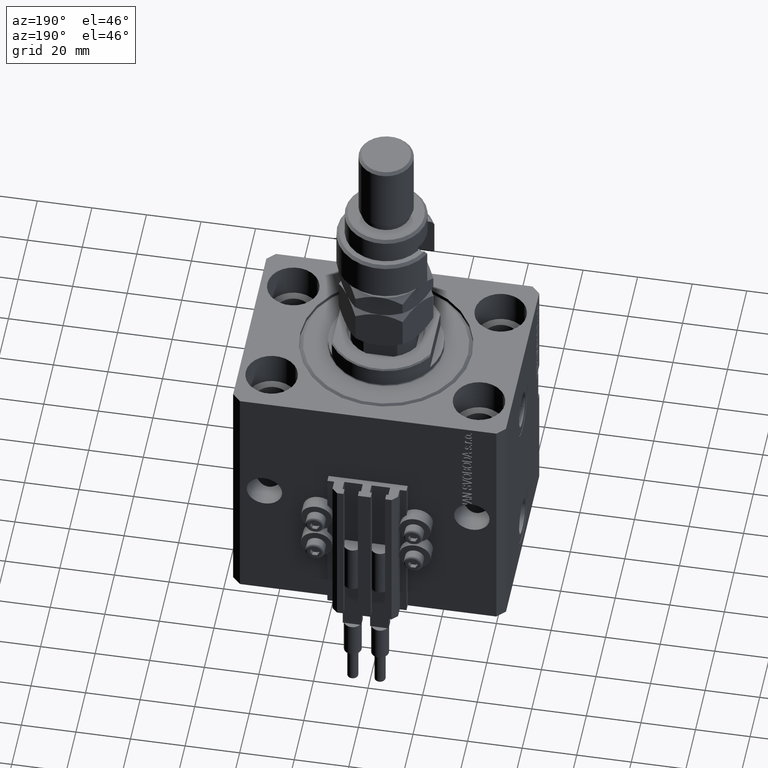
[diagram: clean part render]
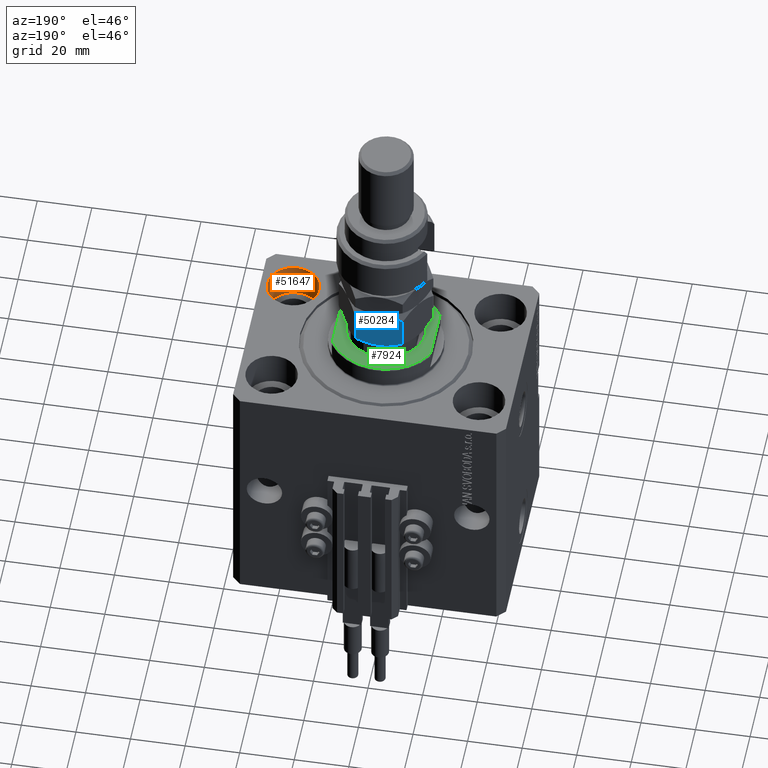
[diagram: same view with three faces highlighted in distinct colors, each labeled with its STEP entity id]
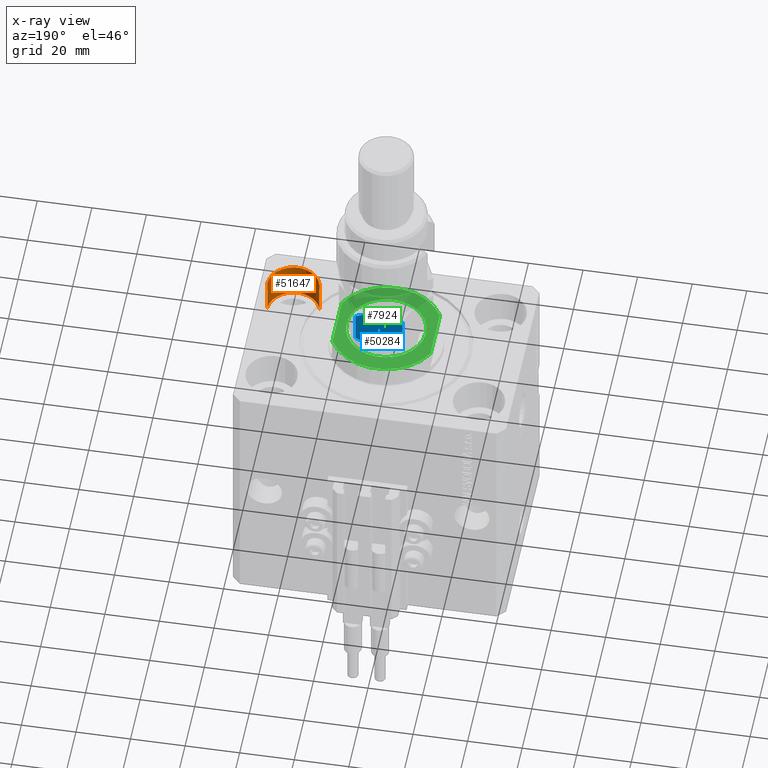
[diagram: x-ray of the same camera — body ghosted, the three highlighted faces saturated]
A machine part, auxiliary view with three faces highlighted in distinct colors.
The next image is the same camera in x-ray (body ghosted, the three faces saturated) — at least one of them is partly hidden behind the body in this view.
Their STEP definitions:

[orange] entity #51647 — the highlighted cylindrical surface (edge-blend (fillet) strip) has radius 9.5 mm, axis along (0, 0, 1).
#3192 = VECTOR ( 'NONE', #11476, 1000.000000000000000 ) ;
#4211 = ORIENTED_EDGE ( 'NONE', *, *, #10575, .F. ) ;
#7551 = CARTESIAN_POINT ( 'NONE',  ( 47.50000000000000711, -22.50000000000000000, -13.00000000000000000 ) ) ;
#8073 = CARTESIAN_POINT ( 'NONE',  ( 47.50000000000000711, -22.50000000000000000, -13.00000000000000000 ) ) ;
#8594 = CIRCLE ( 'NONE', #46232, 9.500000000000001776 ) ;
#10022 = VECTOR ( 'NONE', #11278, 1000.000000000000000 ) ;
#10575 = EDGE_CURVE ( 'NONE', #42888, #39161, #51062, .T. ) ;
#11278 = DIRECTION ( 'NONE',  ( -0.000000000000000000, -0.000000000000000000, 1.000000000000000000 ) ) ;
#11476 = DIRECTION ( 'NONE',  ( -0.000000000000000000, -0.000000000000000000, 1.000000000000000000 ) ) ;
#12895 = VERTEX_POINT ( 'NONE', #47609 ) ;
#13987 = AXIS2_PLACEMENT_3D ( 'NONE', #26715, #21805, #22775 ) ;
#14050 = EDGE_CURVE ( 'NONE', #31219, #39161, #45870, .T. ) ;
#15204 = CARTESIAN_POINT ( 'NONE',  ( 28.50000000000000355, -22.50000000000000000, -13.00000000000000000 ) ) ;
#15367 = DIRECTION ( 'NONE',  ( 1.000000000000000000, 0.000000000000000000, 0.000000000000000000 ) ) ;
#16880 = EDGE_CURVE ( 'NONE', #12895, #31219, #39037, .T. ) ;
#19964 = CARTESIAN_POINT ( 'NONE',  ( 28.50000000000000355, -22.50000000000000000, 0.000000000000000000 ) ) ;
#21805 = DIRECTION ( 'NONE',  ( -0.000000000000000000, -0.000000000000000000, 1.000000000000000000 ) ) ;
#22429 = AXIS2_PLACEMENT_3D ( 'NONE', #44178, #28155, #15367 ) ;
#22775 = DIRECTION ( 'NONE',  ( 1.000000000000000000, 0.000000000000000000, 0.000000000000000000 ) ) ;
#23300 = CYLINDRICAL_SURFACE ( 'NONE', #13987, 9.500000000000001776 ) ;
#25956 = DIRECTION ( 'NONE',  ( 1.000000000000000000, 0.000000000000000000, 0.000000000000000000 ) ) ;
#26711 = EDGE_CURVE ( 'NONE', #12895, #42888, #8594, .T. ) ;
#26715 = CARTESIAN_POINT ( 'NONE',  ( 38.00000000000000711, -22.50000000000000000, -13.00000000000000000 ) ) ;
#28155 = DIRECTION ( 'NONE',  ( 0.000000000000000000, 0.000000000000000000, 1.000000000000000000 ) ) ;
#30404 = CARTESIAN_POINT ( 'NONE',  ( 38.00000000000000711, -22.50000000000000000, -13.00000000000000000 ) ) ;
#31219 = VERTEX_POINT ( 'NONE', #19964 ) ;
#33592 = FACE_OUTER_BOUND ( 'NONE', #42361, .T. ) ;
#38099 = ORIENTED_EDGE ( 'NONE', *, *, #16880, .T. ) ;
#39037 = LINE ( 'NONE', #15204, #10022 ) ;
#39161 = VERTEX_POINT ( 'NONE', #50608 ) ;
#40117 = ORIENTED_EDGE ( 'NONE', *, *, #14050, .T. ) ;
#42361 = EDGE_LOOP ( 'NONE', ( #48489, #38099, #40117, #4211 ) ) ;
#42888 = VERTEX_POINT ( 'NONE', #8073 ) ;
#44178 = CARTESIAN_POINT ( 'NONE',  ( 38.00000000000000711, -22.50000000000000000, 0.000000000000000000 ) ) ;
#45870 = CIRCLE ( 'NONE', #22429, 9.500000000000001776 ) ;
#46232 = AXIS2_PLACEMENT_3D ( 'NONE', #30404, #46430, #25956 ) ;
#46430 = DIRECTION ( 'NONE',  ( 0.000000000000000000, 0.000000000000000000, 1.000000000000000000 ) ) ;
#47609 = CARTESIAN_POINT ( 'NONE',  ( 28.50000000000000355, -22.50000000000000000, -13.00000000000000000 ) ) ;
#48489 = ORIENTED_EDGE ( 'NONE', *, *, #26711, .F. ) ;
#50608 = CARTESIAN_POINT ( 'NONE',  ( 47.50000000000000711, -22.50000000000000000, 0.000000000000000000 ) ) ;
#51062 = LINE ( 'NONE', #7551, #3192 ) ;
#51647 = ADVANCED_FACE ( 'NONE', ( #33592 ), #23300, .F. ) ;

[blue] entity #50284 — the highlighted planar face has unit normal (0, -1, 0).
#354 = ORIENTED_EDGE ( 'NONE', *, *, #31168, .F. ) ;
#492 = CARTESIAN_POINT ( 'NONE',  ( 0.000000000000000000, 17.32050807568877104, 16.00000000000000000 ) ) ;
#917 = VERTEX_POINT ( 'NONE', #15446 ) ;
#963 = EDGE_CURVE ( 'NONE', #33290, #25014, #11776, .T. ) ;
#1547 = VERTEX_POINT ( 'NONE', #32020 ) ;
#2182 = CARTESIAN_POINT ( 'NONE',  ( -2.378834511187503331, 15.94708733029709435, 14.93551393225599710 ) ) ;
#3108 = ORIENTED_EDGE ( 'NONE', *, *, #44865, .F. ) ;
#3927 = CARTESIAN_POINT ( 'NONE',  ( 3.803331551779305683E-16, 17.32050807568877104, 13.67949192431124317 ) ) ;
#3953 = EDGE_CURVE ( 'NONE', #917, #33428, #47261, .T. ) ;
#4980 = CARTESIAN_POINT ( 'NONE',  ( -7.499999999999991118, 12.99038105676658184, 16.00000000000000000 ) ) ;
#5223 = CARTESIAN_POINT ( 'NONE',  ( -15.00000000000000000, 8.660254037844392627, 13.67949192431123429 ) ) ;
#5769 = CARTESIAN_POINT ( 'NONE',  ( -4.913081180497406386, 14.48393933357811214, 0.2303299219392169472 ) ) ;
#6023 = CARTESIAN_POINT ( 'NONE',  ( 7.621669386706803087E-17, 17.32050807568877104, 2.320508075688761718 ) ) ;
#6301 = ORIENTED_EDGE ( 'NONE', *, *, #19245, .T. ) ;
#7325 = ORIENTED_EDGE ( 'NONE', *, *, #46418, .F. ) ;
#7612 = CARTESIAN_POINT ( 'NONE',  ( -4.881674457977373649, 14.50207201327941675, 15.71619733805371055 ) ) ;
#9702 = CARTESIAN_POINT ( 'NONE',  ( -6.195449321423083688, 13.74356374221447297, 3.003578830963748213E-15 ) ) ;
#9953 = CARTESIAN_POINT ( 'NONE',  ( -2.383929548160348855, 15.94414570932928576, 1.060479031370877401 ) ) ;
#10301 = CARTESIAN_POINT ( 'NONE',  ( -7.499999999999991118, 12.99038105676658184, 16.00000000000000000 ) ) ;
#11679 = CARTESIAN_POINT ( 'NONE',  ( -7.499999999999992895, 12.99038105676658361, 0.000000000000000000 ) ) ;
#11776 = LINE ( 'NONE', #27477, #14522 ) ;
#11795 = CARTESIAN_POINT ( 'NONE',  ( -1.176108425306640504, 16.64148155974180199, 14.35851844025821578 ) ) ;
#12288 = DIRECTION ( 'NONE',  ( -0.000000000000000000, -0.000000000000000000, -1.000000000000000000 ) ) ;
#12302 = LINE ( 'NONE', #492, #33485 ) ;
#12308 = DIRECTION ( 'NONE',  ( 0.4999999999999995559, -0.8660254037844389297, 0.000000000000000000 ) ) ;
#12821 = PLANE ( 'NONE',  #46579 ) ;
#13342 = CARTESIAN_POINT ( 'NONE',  ( -7.499999999999991118, 12.99038105676658184, 16.00000000000000000 ) ) ;
#14522 = VECTOR ( 'NONE', #12288, 1000.000000000000000 ) ;
#15446 = CARTESIAN_POINT ( 'NONE',  ( 3.803331551779305683E-16, 17.32050807568877104, 13.67949192431124317 ) ) ;
#16226 = CARTESIAN_POINT ( 'NONE',  ( 0.000000000000000000, 17.32050807568877104, 16.00000000000000000 ) ) ;
#19245 = EDGE_CURVE ( 'NONE', #917, #1547, #12302, .T. ) ;
#20313 = ORIENTED_EDGE ( 'NONE', *, *, #963, .F. ) ;
#23368 = CARTESIAN_POINT ( 'NONE',  ( -8.823580389329299223, 12.22621156269320863, 0.05953537397470442388 ) ) ;
#23559 = CARTESIAN_POINT ( 'NONE',  ( -6.176419610670691895, 13.75455055083996747, 15.94046462602529957 ) ) ;
#23679 = B_SPLINE_CURVE_WITH_KNOTS ( 'NONE', 3,
 ( #13342, #36893, #48224, #36643, #29293, #5223 ),
 .UNSPECIFIED., .F., .F.,
 ( 4, 2, 4 ),
 ( 0.008977392552884438590, 0.01343452311421656012, 0.01789165367554868338 ),
 .UNSPECIFIED. ) ;
#24069 = DIRECTION ( 'NONE',  ( 0.8660254037844389297, 0.4999999999999995559, 0.000000000000000000 ) ) ;
#25014 = VERTEX_POINT ( 'NONE', #28714 ) ;
#27305 = CARTESIAN_POINT ( 'NONE',  ( -8.156876182308247181, 12.61113341608666083, 3.106916850528774038E-15 ) ) ;
#27477 = CARTESIAN_POINT ( 'NONE',  ( -15.00000000000000000, 8.660254037844392627, 16.00000000000000000 ) ) ;
#28255 = DIRECTION ( 'NONE',  ( -0.000000000000000000, -0.000000000000000000, -1.000000000000000000 ) ) ;
#28714 = CARTESIAN_POINT ( 'NONE',  ( -15.00000000000000000, 8.660254037844394404, 2.320508075688769711 ) ) ;
#29293 = CARTESIAN_POINT ( 'NONE',  ( -13.82525345580783771, 9.338494271363320109, 14.35773215783021683 ) ) ;
#29833 = CARTESIAN_POINT ( 'NONE',  ( -7.499999999999992895, 12.99038105676658361, 0.000000000000000000 ) ) ;
#31168 = EDGE_CURVE ( 'NONE', #25014, #43315, #38230, .T. ) ;
#31224 = CARTESIAN_POINT ( 'NONE',  ( -15.00000000000000000, 8.660254037844394404, 2.320508075688769711 ) ) ;
#32020 = CARTESIAN_POINT ( 'NONE',  ( 7.621669386706803087E-17, 17.32050807568877104, 2.320508075688761718 ) ) ;
#33290 = VERTEX_POINT ( 'NONE', #34087 ) ;
#33428 = VERTEX_POINT ( 'NONE', #4980 ) ;
#33485 = VECTOR ( 'NONE', #28255, 1000.000000000000000 ) ;
#34087 = CARTESIAN_POINT ( 'NONE',  ( -15.00000000000000000, 8.660254037844392627, 13.67949192431123429 ) ) ;
#35093 = CARTESIAN_POINT ( 'NONE',  ( -4.247772349543481596, 14.86805556622359070, 15.55242859148697043 ) ) ;
#35657 = B_SPLINE_CURVE_WITH_KNOTS ( 'NONE', 3,
 ( #29833, #9702, #5769, #9953, #41913, #6023 ),
 .UNSPECIFIED., .F., .F.,
 ( 4, 2, 4 ),
 ( 0.008977392552884454202, 0.01343452311421656706, 0.01789165367554867991 ),
 .UNSPECIFIED. ) ;
#35675 = CARTESIAN_POINT ( 'NONE',  ( -10.11832554202262280, 11.47869010025375403, 0.2838026619462963862 ) ) ;
#36643 = CARTESIAN_POINT ( 'NONE',  ( -12.61607045183964715, 10.03661640420387435, 14.93952096862911816 ) ) ;
#36893 = CARTESIAN_POINT ( 'NONE',  ( -8.804550678576905653, 12.23719837131869781, 16.00000000000000000 ) ) ;
#38230 = B_SPLINE_CURVE_WITH_KNOTS ( 'NONE', 3,
 ( #31224, #44348, #47514, #40394, #35675, #23368, #27305, #47258 ),
 .UNSPECIFIED., .F., .F.,
 ( 4, 2, 2, 4 ),
 ( 2.544309033652409006E-07, 0.004488823491893913914, 0.006733108022389184058, 0.008977392552884454202 ),
 .UNSPECIFIED. ) ;
#40394 = CARTESIAN_POINT ( 'NONE',  ( -10.75222765045650597, 11.11270654730957119, 0.4475714085130295117 ) ) ;
#41913 = CARTESIAN_POINT ( 'NONE',  ( -1.174746544192158293, 16.64226784216984356, 1.642267842169780501 ) ) ;
#42604 = EDGE_LOOP ( 'NONE', ( #354, #20313, #7325, #42701, #6301, #3108 ) ) ;
#42701 = ORIENTED_EDGE ( 'NONE', *, *, #3953, .F. ) ;
#43315 = VERTEX_POINT ( 'NONE', #11679 ) ;
#43764 = FACE_OUTER_BOUND ( 'NONE', #42604, .T. ) ;
#44348 = CARTESIAN_POINT ( 'NONE',  ( -13.82389157469336283, 9.339280553791375894, 1.641481559741795548 ) ) ;
#44865 = EDGE_CURVE ( 'NONE', #43315, #1547, #35657, .T. ) ;
#46209 = CARTESIAN_POINT ( 'NONE',  ( -6.843123817691743938, 13.36962869744650995, 16.00000000000000355 ) ) ;
#46418 = EDGE_CURVE ( 'NONE', #33428, #33290, #23679, .T. ) ;
#46579 = AXIS2_PLACEMENT_3D ( 'NONE', #16226, #12308, #24069 ) ;
#47258 = CARTESIAN_POINT ( 'NONE',  ( -7.499999999999992895, 12.99038105676658361, 0.000000000000000000 ) ) ;
#47261 = B_SPLINE_CURVE_WITH_KNOTS ( 'NONE', 3,
 ( #3927, #11795, #2182, #35093, #7612, #23559, #46209, #10301 ),
 .UNSPECIFIED., .F., .F.,
 ( 4, 2, 2, 4 ),
 ( 2.544309033646407248E-07, 0.004488823491893900036, 0.006733108022389169313, 0.008977392552884438590 ),
 .UNSPECIFIED. ) ;
#47514 = CARTESIAN_POINT ( 'NONE',  ( -12.62116548881249400, 10.03367478323607109, 1.064486067744009556 ) ) ;
#48224 = CARTESIAN_POINT ( 'NONE',  ( -10.08691881950258740, 11.49682277995505864, 15.76967007806078236 ) ) ;
#50284 = ADVANCED_FACE ( 'NONE', ( #43764 ), #12821, .F. ) ;

[green] entity #7924 — the highlighted planar face has unit normal (0, 0, 1).
#263 = ORIENTED_EDGE ( 'NONE', *, *, #28342, .T. ) ;
#2176 = ORIENTED_EDGE ( 'NONE', *, *, #27585, .T. ) ;
#2701 = AXIS2_PLACEMENT_3D ( 'NONE', #17376, #24958, #44386 ) ;
#3554 = CIRCLE ( 'NONE', #2701, 20.50000000000000355 ) ;
#3558 = EDGE_CURVE ( 'NONE', #6164, #18877, #33931, .T. ) ;
#4202 = DIRECTION ( 'NONE',  ( 0.000000000000000000, -1.000000000000000000, -0.000000000000000000 ) ) ;
#5422 = DIRECTION ( 'NONE',  ( -1.000000000000000000, 0.000000000000000000, 0.000000000000000000 ) ) ;
#6001 = CIRCLE ( 'NONE', #17684, 14.49999999999998579 ) ;
#6164 = VERTEX_POINT ( 'NONE', #44745 ) ;
#7777 = AXIS2_PLACEMENT_3D ( 'NONE', #46177, #34345, #13949 ) ;
#7838 = FACE_BOUND ( 'NONE', #7872, .T. ) ;
#7872 = EDGE_LOOP ( 'NONE', ( #15736, #2176 ) ) ;
#7924 = ADVANCED_FACE ( 'NONE', ( #7838, #39528 ), #47671, .T. ) ;
#12822 = AXIS2_PLACEMENT_3D ( 'NONE', #15996, #19923, #31188 ) ;
#13796 = CARTESIAN_POINT ( 'NONE',  ( 0.000000000000000000, 0.000000000000000000, -8.000000000000000000 ) ) ;
#13949 = DIRECTION ( 'NONE',  ( -1.000000000000000000, 0.000000000000000000, 0.000000000000000000 ) ) ;
#15183 = ORIENTED_EDGE ( 'NONE', *, *, #3558, .F. ) ;
#15736 = ORIENTED_EDGE ( 'NONE', *, *, #36042, .T. ) ;
#15996 = CARTESIAN_POINT ( 'NONE',  ( 0.000000000000000000, 0.000000000000000000, -8.000000000000000000 ) ) ;
#15997 = LINE ( 'NONE', #17024, #31276 ) ;
#17024 = CARTESIAN_POINT ( 'NONE',  ( 18.00000000000000000, -41.24318125460256113, -8.000000000000000000 ) ) ;
#17376 = CARTESIAN_POINT ( 'NONE',  ( 0.000000000000000000, 0.000000000000000000, -8.000000000000000000 ) ) ;
#17684 = AXIS2_PLACEMENT_3D ( 'NONE', #13796, #50944, #5422 ) ;
#18766 = ORIENTED_EDGE ( 'NONE', *, *, #37924, .T. ) ;
#18877 = VERTEX_POINT ( 'NONE', #19950 ) ;
#19464 = CARTESIAN_POINT ( 'NONE',  ( -14.49999999999998579, 0.000000000000000000, -8.000000000000000000 ) ) ;
#19923 = DIRECTION ( 'NONE',  ( 0.000000000000000000, 0.000000000000000000, -1.000000000000000000 ) ) ;
#19950 = CARTESIAN_POINT ( 'NONE',  ( -18.00000000000000000, -9.810708435174301911, -8.000000000000000000 ) ) ;
#20447 = ORIENTED_EDGE ( 'NONE', *, *, #44754, .T. ) ;
#23274 = CARTESIAN_POINT ( 'NONE',  ( 0.000000000000000000, 0.000000000000000000, -8.000000000000000000 ) ) ;
#23827 = EDGE_LOOP ( 'NONE', ( #263, #20447, #18766, #15183 ) ) ;
#24958 = DIRECTION ( 'NONE',  ( 0.000000000000000000, 0.000000000000000000, -1.000000000000000000 ) ) ;
#25322 = CIRCLE ( 'NONE', #7777, 14.49999999999998579 ) ;
#27585 = EDGE_CURVE ( 'NONE', #37033, #43519, #25322, .T. ) ;
#27715 = DIRECTION ( 'NONE',  ( -1.000000000000000000, 0.000000000000000000, -0.000000000000000000 ) ) ;
#28342 = EDGE_CURVE ( 'NONE', #6164, #44085, #45441, .T. ) ;
#29100 = AXIS2_PLACEMENT_3D ( 'NONE', #23274, #34805, #27715 ) ;
#31188 = DIRECTION ( 'NONE',  ( -1.000000000000000000, 0.000000000000000000, 0.000000000000000000 ) ) ;
#31276 = VECTOR ( 'NONE', #4202, 1000.000000000000000 ) ;
#33931 = LINE ( 'NONE', #37603, #49778 ) ;
#34345 = DIRECTION ( 'NONE',  ( -0.000000000000000000, -0.000000000000000000, 1.000000000000000000 ) ) ;
#34805 = DIRECTION ( 'NONE',  ( 0.000000000000000000, 0.000000000000000000, -1.000000000000000000 ) ) ;
#36042 = EDGE_CURVE ( 'NONE', #43519, #37033, #6001, .T. ) ;
#36519 = CARTESIAN_POINT ( 'NONE',  ( 18.00000000000000000, 9.810708435174301911, -8.000000000000000000 ) ) ;
#37033 = VERTEX_POINT ( 'NONE', #50590 ) ;
#37603 = CARTESIAN_POINT ( 'NONE',  ( -18.00000000000000000, -41.24318125460256113, -8.000000000000000000 ) ) ;
#37924 = EDGE_CURVE ( 'NONE', #48571, #18877, #3554, .T. ) ;
#39528 = FACE_OUTER_BOUND ( 'NONE', #23827, .T. ) ;
#43519 = VERTEX_POINT ( 'NONE', #19464 ) ;
#44085 = VERTEX_POINT ( 'NONE', #36519 ) ;
#44386 = DIRECTION ( 'NONE',  ( -1.000000000000000000, 0.000000000000000000, 0.000000000000000000 ) ) ;
#44745 = CARTESIAN_POINT ( 'NONE',  ( -18.00000000000000000, 9.810708435174301911, -8.000000000000000000 ) ) ;
#44754 = EDGE_CURVE ( 'NONE', #44085, #48571, #15997, .T. ) ;
#45441 = CIRCLE ( 'NONE', #12822, 20.50000000000000355 ) ;
#46177 = CARTESIAN_POINT ( 'NONE',  ( 0.000000000000000000, 0.000000000000000000, -8.000000000000000000 ) ) ;
#47671 = PLANE ( 'NONE',  #29100 ) ;
#48571 = VERTEX_POINT ( 'NONE', #50854 ) ;
#49693 = DIRECTION ( 'NONE',  ( -0.000000000000000000, -1.000000000000000000, -0.000000000000000000 ) ) ;
#49778 = VECTOR ( 'NONE', #49693, 1000.000000000000000 ) ;
#50590 = CARTESIAN_POINT ( 'NONE',  ( 14.49999999999998579, 1.775737858763660437E-15, -8.000000000000000000 ) ) ;
#50854 = CARTESIAN_POINT ( 'NONE',  ( 18.00000000000000000, -9.810708435174301911, -8.000000000000000000 ) ) ;
#50944 = DIRECTION ( 'NONE',  ( -0.000000000000000000, -0.000000000000000000, 1.000000000000000000 ) ) ;